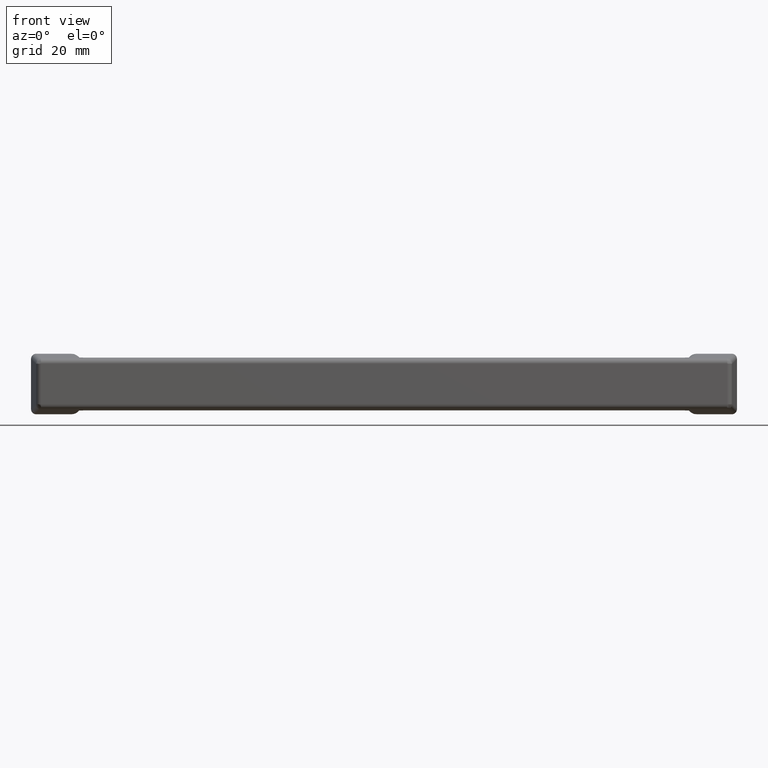
[diagram: clean part render]
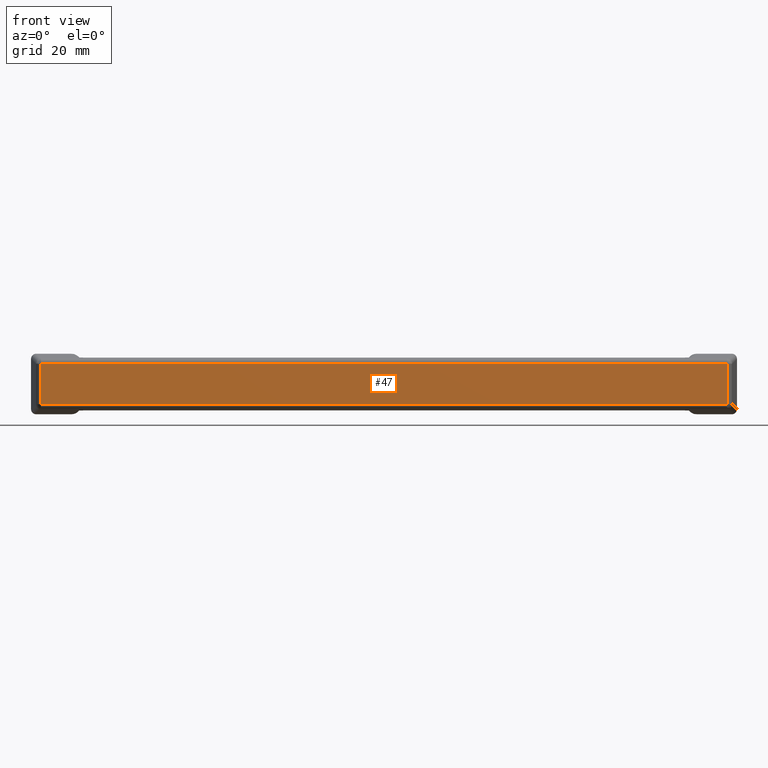
[diagram: same view with one face highlighted and labeled with its STEP entity id]
A machine part, front view. The second image highlights one B-rep face of the part: STEP entity #47.
In plain terms, the highlighted planar face has unit normal (0, 1, -0).
Its self-contained STEP definition (entity closure, byte-faithful):
#47=ADVANCED_FACE('',(#156),#155,.F.);
#155=PLANE('',#565);
#156=FACE_OUTER_BOUND('',#566,.T.);
#562=CARTESIAN_POINT('',(7.80272918640E+001,-2.54482812881E+001,5.19682695857E+000));
#563=DIRECTION('',(0.00000000000E+000,1.00000000000E+000,-0.00000000000E+000));
#564=DIRECTION('',(-1.00000000000E+000,0.00000000000E+000,0.00000000000E+000));
#565=AXIS2_PLACEMENT_3D('',#562,#563,#564);
#566=EDGE_LOOP('',(#1021,#1022,#1023,#1024));
#1021=ORIENTED_EDGE('',*,*,#1299,.T.);
#1022=ORIENTED_EDGE('',*,*,#1300,.T.);
#1023=ORIENTED_EDGE('',*,*,#1301,.T.);
#1024=ORIENTED_EDGE('',*,*,#1302,.T.);
#1299=EDGE_CURVE('',#1713,#1714,#1715,.T.);
#1300=EDGE_CURVE('',#1714,#1721,#1722,.T.);
#1301=EDGE_CURVE('',#1721,#1728,#1729,.T.);
#1302=EDGE_CURVE('',#1728,#1713,#1735,.T.);
#1713=VERTEX_POINT('',#2598);
#1714=VERTEX_POINT('',#2599);
#1715=LINE('',#2600,#2601);
#1721=VERTEX_POINT('',#2603);
#1722=LINE('',#2604,#2605);
#1728=VERTEX_POINT('',#2607);
#1729=LINE('',#2608,#2609);
#1735=LINE('',#2611,#2612);
#2598=CARTESIAN_POINT('',(6.80272918640E+001,-2.54482812881E+001,1.40570894679E+001));
#2599=CARTESIAN_POINT('',(-6.80273920497E+001,-2.54482812881E+001,1.40570894679E+001));
#2600=CARTESIAN_POINT('',(6.80272918640E+001,-2.54482812881E+001,1.40570894679E+001));
#2601=VECTOR('',#2602,1.36054683914E+002);
#2602=DIRECTION('',(-1.00000000000E+000,0.00000000000E+000,0.00000000000E+000));
#2603=CARTESIAN_POINT('',(-6.80273920497E+001,-2.54482812881E+001,6.00230536851E+000));
#2604=CARTESIAN_POINT('',(-6.80273920497E+001,-2.54482812881E+001,1.40570894679E+001));
#2605=VECTOR('',#2606,8.05478409940E+000);
#2606=DIRECTION('',(0.00000000000E+000,0.00000000000E+000,-1.00000000000E+000));
#2607=CARTESIAN_POINT('',(6.80272918640E+001,-2.54482812881E+001,6.00230536851E+000));
#2608=CARTESIAN_POINT('',(-6.80273920497E+001,-2.54482812881E+001,6.00230536851E+000));
#2609=VECTOR('',#2610,1.36054683914E+002);
#2610=DIRECTION('',(1.00000000000E+000,0.00000000000E+000,0.00000000000E+000));
#2611=CARTESIAN_POINT('',(6.80272918640E+001,-2.54482812881E+001,6.00230536851E+000));
#2612=VECTOR('',#2613,8.05478409940E+000);
#2613=DIRECTION('',(0.00000000000E+000,0.00000000000E+000,1.00000000000E+000));